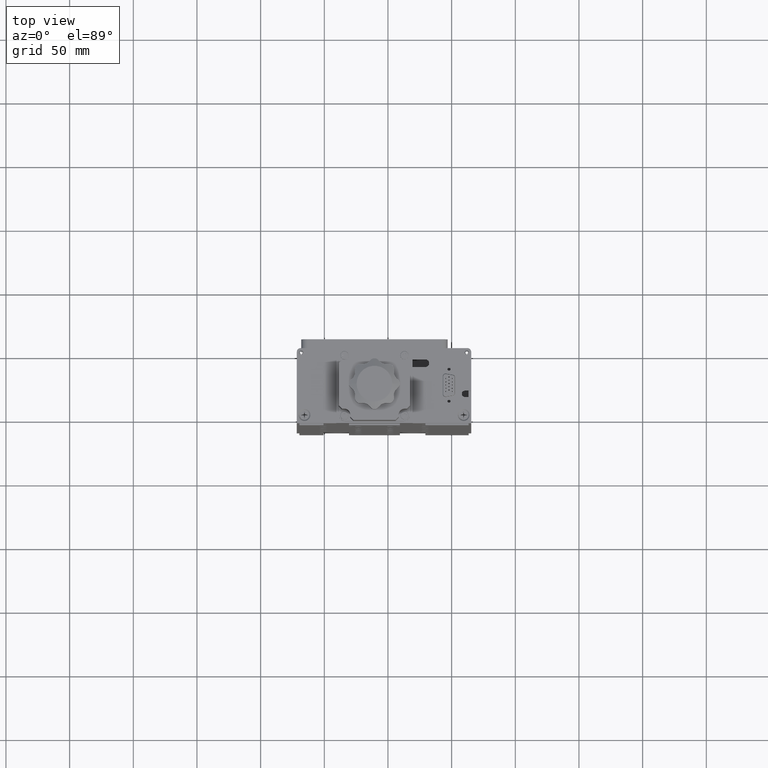
[diagram: clean part render]
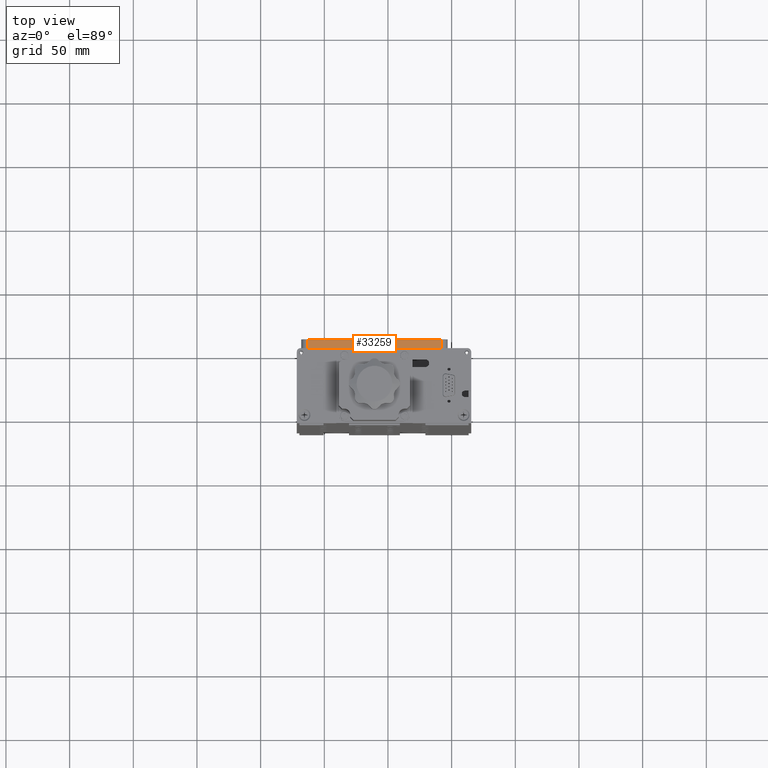
[diagram: same view with one face highlighted and labeled with its STEP entity id]
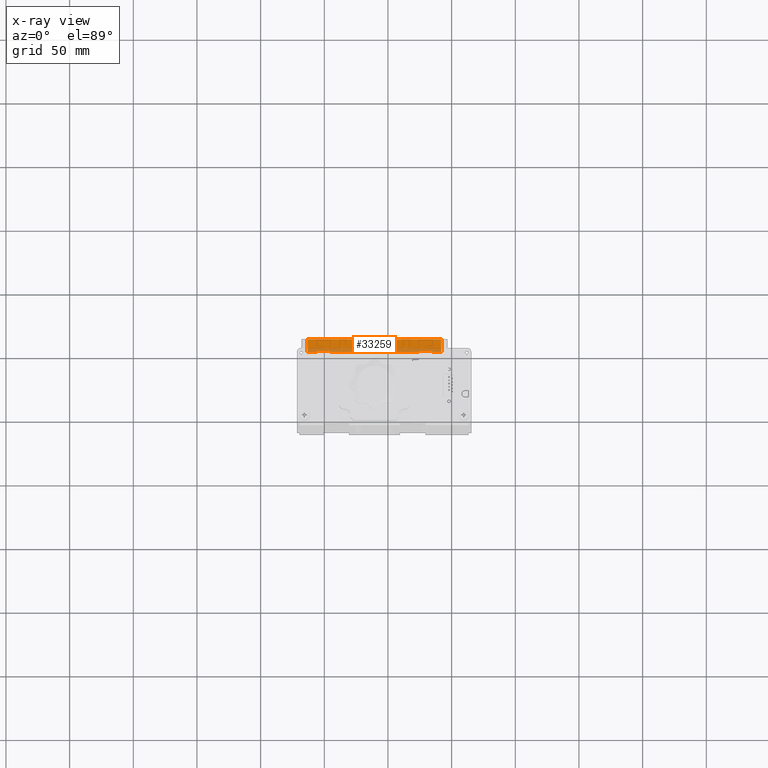
[diagram: x-ray of the same camera — body ghosted, the highlighted face saturated]
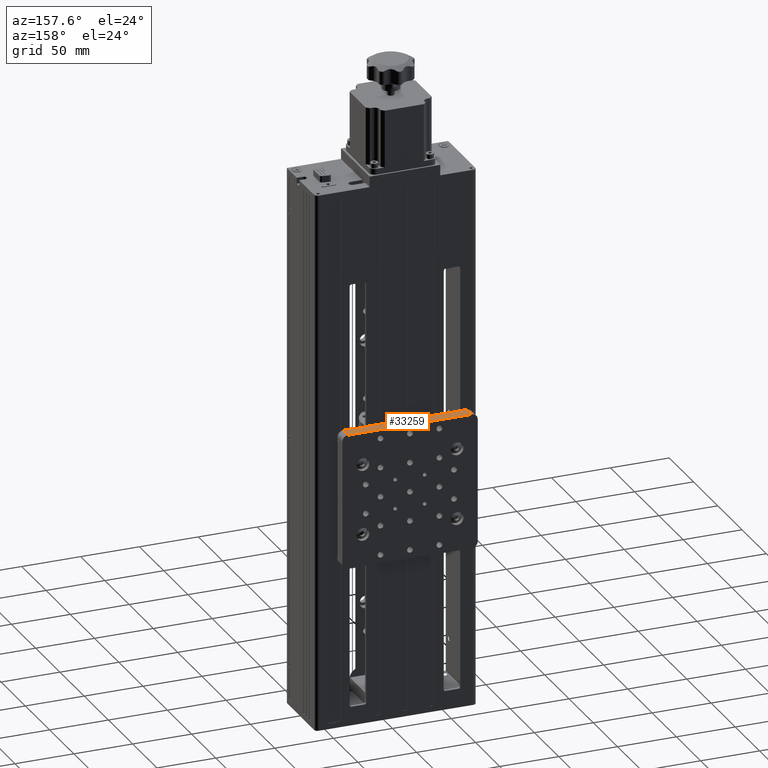
[diagram: same view with one face highlighted and labeled with its STEP entity id]
A machine part, top view. The second image highlights one B-rep face of the part: STEP entity #33259.
The next image is the same camera in x-ray: the body ghosted, the highlighted face saturated — about 32% of this face is hidden behind the body in this view.
A second angle (auxiliary view) of the same face is appended — the face is thin or edge-on in the first view.
In plain terms, the highlighted planar face has unit normal (0, -0, -1).
Its self-contained STEP definition (entity closure, byte-faithful):
#30 = LINE ( 'NONE', #33180, #34155 ) ;
#384 = DIRECTION ( 'NONE',  ( 1.000000000000000000, 1.581389297847712300E-017, 2.775557561562891400E-017 ) ) ;
#1734 = LINE ( 'NONE', #19512, #27056 ) ;
#2023 = ORIENTED_EDGE ( 'NONE', *, *, #32594, .T. ) ;
#2293 = DIRECTION ( 'NONE',  ( 2.775557561562891400E-017, -6.467343205884646300E-019, -1.000000000000000000 ) ) ;
#2588 = LINE ( 'NONE', #26705, #27957 ) ;
#2629 = ORIENTED_EDGE ( 'NONE', *, *, #5903, .T. ) ;
#2965 = ORIENTED_EDGE ( 'NONE', *, *, #9806, .T. ) ;
#3317 = AXIS2_PLACEMENT_3D ( 'NONE', #22065, #2293, #25395 ) ;
#3820 = VECTOR ( 'NONE', #27261, 1000.000000000000000 ) ;
#4419 = CARTESIAN_POINT ( 'NONE',  ( -45.61080835603994600, 51.08234937935199600, 25.00000000000002800 ) ) ;
#4550 = CARTESIAN_POINT ( 'NONE',  ( -45.61080835603994600, 51.08234937935199600, 25.00000000000002800 ) ) ;
#4848 = EDGE_CURVE ( 'NONE', #14148, #32002, #1734, .T. ) ;
#4892 = LINE ( 'NONE', #14244, #3820 ) ;
#5436 = ORIENTED_EDGE ( 'NONE', *, *, #29859, .T. ) ;
#5645 = ORIENTED_EDGE ( 'NONE', *, *, #17855, .T. ) ;
#5903 = EDGE_CURVE ( 'NONE', #9340, #36961, #4892, .T. ) ;
#6882 = DIRECTION ( 'NONE',  ( 1.000000000000000000, 1.581389297847712300E-017, 2.775557561562891400E-017 ) ) ;
#7407 = VERTEX_POINT ( 'NONE', #21222 ) ;
#8453 = LINE ( 'NONE', #14181, #24998 ) ;
#9013 = LINE ( 'NONE', #29838, #25548 ) ;
#9181 = CARTESIAN_POINT ( 'NONE',  ( -63.11080835603991100, 60.58234937935200300, 25.00000000000002800 ) ) ;
#9340 = VERTEX_POINT ( 'NONE', #10321 ) ;
#9545 = ORIENTED_EDGE ( 'NONE', *, *, #42722, .T. ) ;
#9806 = EDGE_CURVE ( 'NONE', #33156, #12353, #27845, .T. ) ;
#10041 = DIRECTION ( 'NONE',  ( -1.581389297847712600E-017, 1.000000000000000000, -6.467343205884651100E-019 ) ) ;
#10321 = CARTESIAN_POINT ( 'NONE',  ( 41.88919164396008200, 60.58234937935200300, 25.00000000000002800 ) ) ;
#10474 = LINE ( 'NONE', #21896, #35822 ) ;
#11263 = LINE ( 'NONE', #33346, #36570 ) ;
#11419 = EDGE_CURVE ( 'NONE', #32002, #7407, #8453, .T. ) ;
#12353 = VERTEX_POINT ( 'NONE', #17099 ) ;
#12422 = CARTESIAN_POINT ( 'NONE',  ( -63.11080835603995400, 50.58234937935200300, 25.00000000000002800 ) ) ;
#12678 = EDGE_CURVE ( 'NONE', #23285, #22027, #30, .T. ) ;
#13216 = CARTESIAN_POINT ( 'NONE',  ( 24.38919164396006400, 50.58234937935200300, 25.00000000000002800 ) ) ;
#14148 = VERTEX_POINT ( 'NONE', #40790 ) ;
#14181 = CARTESIAN_POINT ( 'NONE',  ( 46.88919164396007500, 50.58234937935200300, 25.00000000000002800 ) ) ;
#14244 = CARTESIAN_POINT ( 'NONE',  ( 46.88919164396007500, 60.58234937935200300, 25.00000000000002800 ) ) ;
#15896 = FACE_OUTER_BOUND ( 'NONE', #26222, .T. ) ;
#16341 = CARTESIAN_POINT ( 'NONE',  ( 34.38919164396006100, 50.58234937935200300, 25.00000000000002800 ) ) ;
#16454 = DIRECTION ( 'NONE',  ( 1.581389297847712600E-017, -1.000000000000000000, 6.467343205884651100E-019 ) ) ;
#16499 = ORIENTED_EDGE ( 'NONE', *, *, #18385, .T. ) ;
#17099 = CARTESIAN_POINT ( 'NONE',  ( -55.61080835603993900, 51.08234937935198900, 25.00000000000002800 ) ) ;
#17855 = EDGE_CURVE ( 'NONE', #36961, #38075, #9013, .T. ) ;
#18385 = EDGE_CURVE ( 'NONE', #24742, #33401, #36268, .T. ) ;
#19132 = VECTOR ( 'NONE', #34337, 1000.000000000000000 ) ;
#19512 = CARTESIAN_POINT ( 'NONE',  ( 34.38919164396006100, 51.08234937935200300, 25.00000000000002800 ) ) ;
#19659 = DIRECTION ( 'NONE',  ( -1.581389297847712600E-017, 1.000000000000000000, -6.467343205884651100E-019 ) ) ;
#19730 = CARTESIAN_POINT ( 'NONE',  ( -45.61080835603994600, 50.58234937935200300, 25.00000000000002800 ) ) ;
#20132 = LINE ( 'NONE', #4550, #19132 ) ;
#21222 = CARTESIAN_POINT ( 'NONE',  ( 41.88919164396008200, 50.58234937935200300, 25.00000000000002800 ) ) ;
#21896 = CARTESIAN_POINT ( 'NONE',  ( 34.38919164396006100, 51.08234937935200300, 25.00000000000002800 ) ) ;
#22027 = VERTEX_POINT ( 'NONE', #41510 ) ;
#22065 = CARTESIAN_POINT ( 'NONE',  ( -55.61080835603993900, 50.58234937935200300, 25.00000000000002800 ) ) ;
#22287 = DIRECTION ( 'NONE',  ( 1.581389297847712600E-017, -1.000000000000000000, 6.467343205884651100E-019 ) ) ;
#23285 = VERTEX_POINT ( 'NONE', #13216 ) ;
#23447 = ORIENTED_EDGE ( 'NONE', *, *, #4848, .T. ) ;
#23885 = LINE ( 'NONE', #32837, #31723 ) ;
#24742 = VERTEX_POINT ( 'NONE', #4419 ) ;
#24998 = VECTOR ( 'NONE', #37267, 1000.000000000000000 ) ;
#25222 = DIRECTION ( 'NONE',  ( 1.000000000000000000, 1.242341102270276100E-016, 2.775557561562891400E-017 ) ) ;
#25395 = DIRECTION ( 'NONE',  ( -1.581389297847712600E-017, 1.000000000000000000, -6.467343205884651100E-019 ) ) ;
#25548 = VECTOR ( 'NONE', #22287, 1000.000000000000000 ) ;
#26222 = EDGE_LOOP ( 'NONE', ( #2629, #5645, #5436, #2965, #9545, #16499, #2023, #35681, #36731, #23447, #28737, #30275 ) ) ;
#26705 = CARTESIAN_POINT ( 'NONE',  ( 24.38919164396006400, 50.58234937935200300, 25.00000000000002800 ) ) ;
#27056 = VECTOR ( 'NONE', #39316, 1000.000000000000000 ) ;
#27261 = DIRECTION ( 'NONE',  ( -1.000000000000000000, -1.581389297847712300E-017, -2.775557561562891400E-017 ) ) ;
#27517 = VECTOR ( 'NONE', #16454, 1000.000000000000000 ) ;
#27845 = LINE ( 'NONE', #33271, #35572 ) ;
#27957 = VECTOR ( 'NONE', #6882, 1000.000000000000000 ) ;
#28606 = PLANE ( 'NONE',  #3317 ) ;
#28737 = ORIENTED_EDGE ( 'NONE', *, *, #11419, .T. ) ;
#29838 = CARTESIAN_POINT ( 'NONE',  ( -63.11080835603995400, 50.58234937935200300, 25.00000000000002800 ) ) ;
#29859 = EDGE_CURVE ( 'NONE', #38075, #33156, #11263, .T. ) ;
#30275 = ORIENTED_EDGE ( 'NONE', *, *, #41902, .T. ) ;
#31331 = EDGE_CURVE ( 'NONE', #22027, #14148, #10474, .T. ) ;
#31655 = CARTESIAN_POINT ( 'NONE',  ( -55.61080835603993900, 50.58234937935200300, 25.00000000000002800 ) ) ;
#31723 = VECTOR ( 'NONE', #19659, 1000.000000000000000 ) ;
#32002 = VERTEX_POINT ( 'NONE', #16341 ) ;
#32594 = EDGE_CURVE ( 'NONE', #33401, #23285, #2588, .T. ) ;
#32837 = CARTESIAN_POINT ( 'NONE',  ( 41.88919164396008200, 50.58234937935200300, 25.00000000000002800 ) ) ;
#33156 = VERTEX_POINT ( 'NONE', #31655 ) ;
#33180 = CARTESIAN_POINT ( 'NONE',  ( 24.38919164396006400, 51.08234937935200300, 25.00000000000002800 ) ) ;
#33259 = ADVANCED_FACE ( 'NONE', ( #15896 ), #28606, .F. ) ;
#33271 = CARTESIAN_POINT ( 'NONE',  ( -55.61080835603993900, 51.08234937935198900, 25.00000000000002800 ) ) ;
#33346 = CARTESIAN_POINT ( 'NONE',  ( -55.61080835603993900, 50.58234937935200300, 25.00000000000002800 ) ) ;
#33401 = VERTEX_POINT ( 'NONE', #19730 ) ;
#34155 = VECTOR ( 'NONE', #10041, 1000.000000000000000 ) ;
#34337 = DIRECTION ( 'NONE',  ( 1.000000000000000000, 1.459181536767377000E-016, 2.775557561562891400E-017 ) ) ;
#35572 = VECTOR ( 'NONE', #39915, 1000.000000000000000 ) ;
#35681 = ORIENTED_EDGE ( 'NONE', *, *, #12678, .T. ) ;
#35822 = VECTOR ( 'NONE', #25222, 1000.000000000000000 ) ;
#36268 = LINE ( 'NONE', #39734, #27517 ) ;
#36570 = VECTOR ( 'NONE', #384, 1000.000000000000000 ) ;
#36731 = ORIENTED_EDGE ( 'NONE', *, *, #31331, .T. ) ;
#36961 = VERTEX_POINT ( 'NONE', #9181 ) ;
#37267 = DIRECTION ( 'NONE',  ( 1.000000000000000000, 1.581389297847712300E-017, 2.775557561562891400E-017 ) ) ;
#38075 = VERTEX_POINT ( 'NONE', #12422 ) ;
#39316 = DIRECTION ( 'NONE',  ( 1.581389297847712600E-017, -1.000000000000000000, 6.467343205884651100E-019 ) ) ;
#39734 = CARTESIAN_POINT ( 'NONE',  ( -45.61080835603994600, 51.08234937935199600, 25.00000000000002800 ) ) ;
#39915 = DIRECTION ( 'NONE',  ( -1.581389297847712600E-017, 1.000000000000000000, -6.467343205884651100E-019 ) ) ;
#40790 = CARTESIAN_POINT ( 'NONE',  ( 34.38919164396006100, 51.08234937935200300, 25.00000000000002800 ) ) ;
#41510 = CARTESIAN_POINT ( 'NONE',  ( 24.38919164396006400, 51.08234937935200300, 25.00000000000002800 ) ) ;
#41902 = EDGE_CURVE ( 'NONE', #7407, #9340, #23885, .T. ) ;
#42722 = EDGE_CURVE ( 'NONE', #12353, #24742, #20132, .T. ) ;